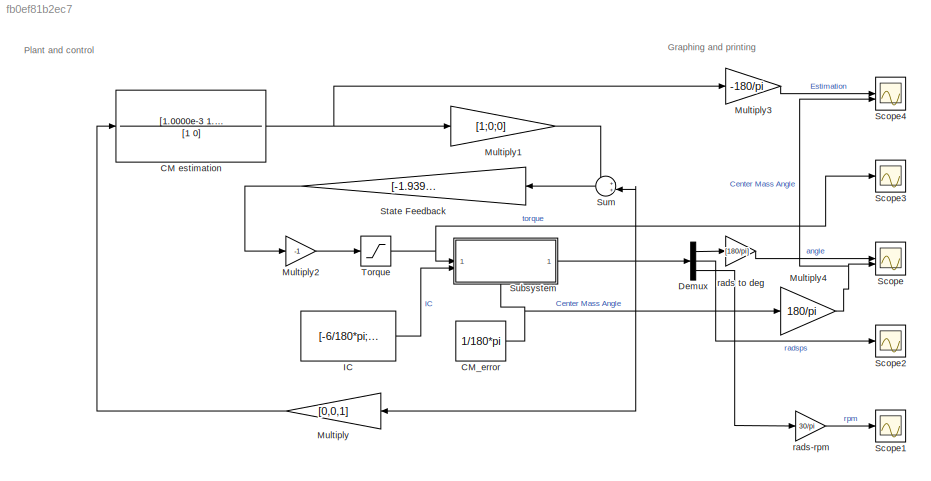
MODEL slx_fb0ef81b2ec7
KIND model
CONFIG AbsTol = auto
CONFIG EnableMultiTasking = off
CONFIG FixedStep = 1e-5
CONFIG MaxStep = auto
CONFIG MinStep = auto
CONFIG RelTol = 1e-3
CONFIG SampleTimeConstraint = Unconstrained
CONFIG SolverName = FixedStepAuto
CONFIG StartTime = 0.0
CONFIG StopTime = 10
WORKSPACE source: mxarray member
WORKSPACE B_f: Simulink.Parameter (value not decoded)
WORKSPACE B_w: Simulink.Parameter (value not decoded)
WORKSPACE J_f: Simulink.Parameter (value not decoded)
WORKSPACE J_w: Simulink.Parameter (value not decoded)
WORKSPACE g: Simulink.Parameter (value not decoded)
WORKSPACE l_f: Simulink.Parameter (value not decoded)
WORKSPACE l_w: Simulink.Parameter (value not decoded)
WORKSPACE m_f: Simulink.Parameter (value not decoded)
WORKSPACE m_w: Simulink.Parameter (value not decoded)
BLOCK [TransferFcn] CM estimation
  Denominator = [1 0]
  Numerator = [1.0000e-3 1.0000e-3]
BLOCK [Constant] CM_error
  Value = 1/180*pi
BLOCK [Demux] Demux
  Outputs = 3
BLOCK [Constant] IC
  Value = [-6/180*pi;0;0]
BLOCK [Gain] Multiply
  Gain = [0,0,1]
  Multiplication = Matrix(K*u)
  NameLocation = top
BLOCK [Gain] Multiply1
  Gain = [1;0;0]
  Multiplication = Matrix(K*u)
BLOCK [Gain] Multiply2
  Gain = -1
BLOCK [Gain] Multiply3
  Gain = -180/pi
BLOCK [Gain] Multiply4
  Gain = 180/pi
BLOCK [Scope] Scope
  Floating = off
  NumInputPorts = 2
  ScopeSpecificationString = Simulink.scopes.TimeScopeBlockCfg('CurrentConfiguration', extmgr.ConfigurationSet(extmgr.Configuration('Core','General UI',true),extmgr.Configuration('Core','Source UI',true),extmgr.Configuration('Sources','WiredSimulink',true),extmgr.Configuration('Visuals','Time Domain',true,'SerializedDisplays',{struct('MinYLimReal','-6.96667','MaxYLimReal','2.70002','YLabelReal','','MinYLimMag','0.00000','MaxY...<+1376ch>
BLOCK [Scope] Scope1
  Floating = off
  NumInputPorts = 1
  ScopeSpecificationString = Simulink.scopes.TimeScopeBlockCfg('CurrentConfiguration', extmgr.ConfigurationSet(extmgr.Configuration('Core','General UI',true),extmgr.Configuration('Core','Source UI',true),extmgr.Configuration('Sources','WiredSimulink',true,'DataLoggingVariableName','ScopeData1'),extmgr.Configuration('Visuals','Time Domain',true,'SerializedDisplays',{struct('MinYLimReal','-65.25392','MaxYLimReal','15.71621','YL...<+1724ch>
BLOCK [Scope] Scope2
  Floating = off
  NumInputPorts = 1
  ScopeSpecificationString = Simulink.scopes.TimeScopeBlockCfg('CurrentConfiguration', extmgr.ConfigurationSet(extmgr.Configuration('Core','General UI',true),extmgr.Configuration('Core','Source UI',true),extmgr.Configuration('Sources','WiredSimulink',true,'DataLoggingVariableName','ScopeData2'),extmgr.Configuration('Visuals','Time Domain',true,'SerializedDisplays',{struct('MinYLimReal','-0.48803','MaxYLimReal','0.14212','YLab...<+1384ch>
BLOCK [Scope] Scope3
  Floating = off
  NumInputPorts = 1
  ScopeSpecificationString = Simulink.scopes.TimeScopeBlockCfg('CurrentConfiguration', extmgr.ConfigurationSet(extmgr.Configuration('Core','General UI',true),extmgr.Configuration('Core','Source UI',true),extmgr.Configuration('Sources','WiredSimulink',true,'DataLoggingVariableName','ScopeData3'),extmgr.Configuration('Visuals','Time Domain',true,'SerializedDisplays',{struct('MinYLimReal','-0.1523','MaxYLimReal','0.03067','YLabe...<+1361ch>
BLOCK [Scope] Scope4
  Floating = off
  NumInputPorts = 2
  ScopeSpecificationString = Simulink.scopes.TimeScopeBlockCfg('CurrentConfiguration', extmgr.ConfigurationSet(extmgr.Configuration('Core','General UI',true),extmgr.Configuration('Core','Source UI',true),extmgr.Configuration('Sources','WiredSimulink',true,'DataLoggingVariableName','ScopeData1'),extmgr.Configuration('Visuals','Time Domain',true,'SerializedDisplays',{struct('MinYLimReal','-0.14876','MaxYLimReal','1.33886','YLab...<+1458ch>
BLOCK [Gain] State Feedback
  Gain = [-1.9398,-0.21019,-0.00225]
  Multiplication = Matrix(K*u)
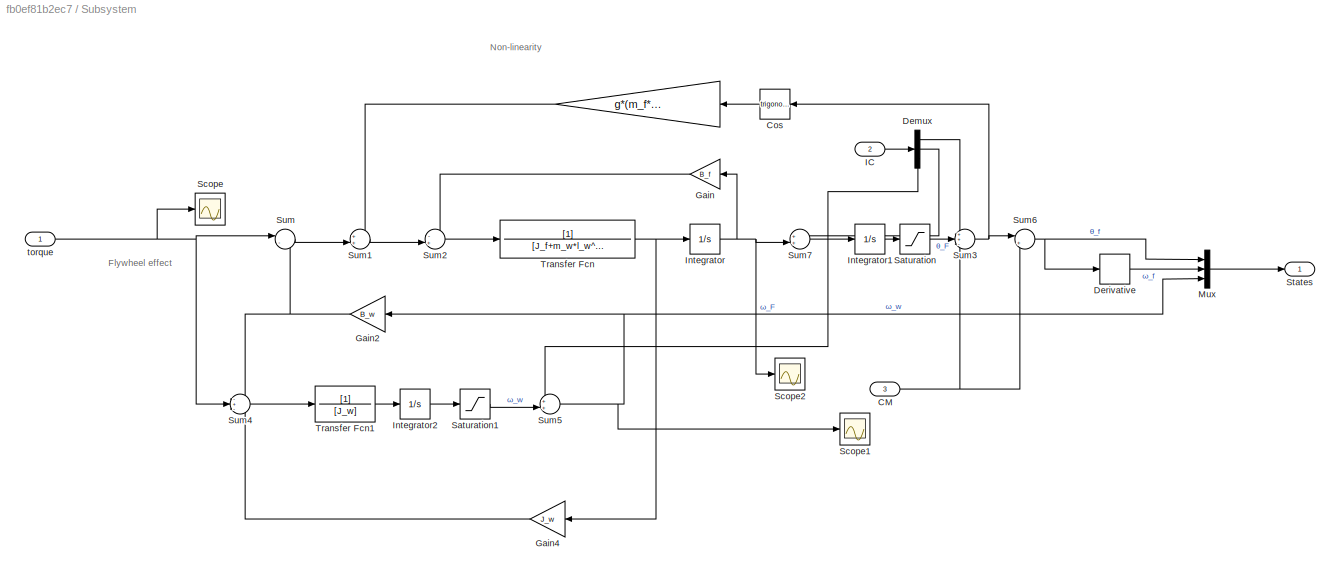
BLOCK [SubSystem] Subsystem
  PortSchema = {"entries":[{"content":{"sides":[{"content":{"connectorIds":["In1","In2"]},"type":"ConnectorPlacement.EquallySpacedRectSide","uuid":"e7061c55-2b62-4262-b0e7-7a5bab08f6b1"},{"content":{"connectorIds":["Out1"],"side":"RIGHT"},"type":"ConnectorPlacement.EquallySpacedRectSide","uuid":"5d6af3c2-eba8-48f3-a8f1-c49dd0c9c08f"},{"content":{"connectorIds":[],"side":"TOP"},"type":"ConnectorPlacement.EquallyS...<+395ch>
BLOCK [Gain] Subsystem/ 
  Gain = g*(m_f*l_f+m_w*l_w)
BLOCK [Inport] Subsystem/CM
  Port = 3
BLOCK [Trigonometry] Subsystem/Cos
  NameLocation = top
BLOCK [Demux] Subsystem/Demux
  Outputs = 3
BLOCK [Derivative] Subsystem/Derivative
BLOCK [Gain] Subsystem/Gain
  Gain = B_f
BLOCK [Gain] Subsystem/Gain2
  Gain = B_w
BLOCK [Gain] Subsystem/Gain4
  Gain = J_w
BLOCK [Inport] Subsystem/IC
  Port = 2
BLOCK [Integrator] Subsystem/Integrator
BLOCK [Integrator] Subsystem/Integrator1
BLOCK [Integrator] Subsystem/Integrator2
BLOCK [Mux] Subsystem/Mux
  DisplayOption = bar
  Inputs = 3
BLOCK [Saturate] Subsystem/Saturation
  LowerLimit = -45/180*pi
  UpperLimit = 45/180*pi
BLOCK [Saturate] Subsystem/Saturation1
  LowerLimit = -6000
  UpperLimit = 6000
BLOCK [Scope] Subsystem/Scope
  Floating = off
  NumInputPorts = 1
  ScopeSpecificationString = Simulink.scopes.TimeScopeBlockCfg('CurrentConfiguration', extmgr.ConfigurationSet(extmgr.Configuration('Core','General UI',true),extmgr.Configuration('Core','Source UI',true),extmgr.Configuration('Sources','WiredSimulink',true,'DataLoggingVariableName','ScopeData2'),extmgr.Configuration('Visuals','Time Domain',true,'SerializedDisplays',{struct('MinYLimReal','-0.0033','MaxYLimReal','0.00184','YLabe...<+1407ch>
BLOCK [Scope] Subsystem/Scope1
  Floating = off
  NumInputPorts = 1
  ScopeSpecificationString = Simulink.scopes.TimeScopeBlockCfg('CurrentConfiguration', extmgr.ConfigurationSet(extmgr.Configuration('Core','General UI',true),extmgr.Configuration('Core','Source UI',true),extmgr.Configuration('Sources','WiredSimulink',true,'DataLoggingVariableName','ScopeData3'),extmgr.Configuration('Visuals','Time Domain',true,'SerializedDisplays',{struct('MinYLimReal','-6.83337','MaxYLimReal','1.6458','YLabe...<+1360ch>
BLOCK [Scope] Subsystem/Scope2
  Floating = off
  NumInputPorts = 1
  ScopeSpecificationString = Simulink.scopes.TimeScopeBlockCfg('CurrentConfiguration', extmgr.ConfigurationSet(extmgr.Configuration('Core','General UI',true),extmgr.Configuration('Core','Source UI',true),extmgr.Configuration('Sources','WiredSimulink',true,'DataLoggingVariableName','ScopeData4'),extmgr.Configuration('Visuals','Time Domain',true,'SerializedDisplays',{struct('MinYLimReal','-0.04541','MaxYLimReal','0.37061','YLab...<+1362ch>
BLOCK [Outport] Subsystem/States
  PortDimensions = 3
BLOCK [Sum] Subsystem/Sum
  Inputs = |-+
BLOCK [Sum] Subsystem/Sum1
  Inputs = ++|
BLOCK [Sum] Subsystem/Sum2
  Inputs = -+|
BLOCK [Sum] Subsystem/Sum3
  Inputs = ++-
BLOCK [Sum] Subsystem/Sum4
  Inputs = -+-
BLOCK [Sum] Subsystem/Sum5
  Inputs = ++|
BLOCK [Sum] Subsystem/Sum6
  Inputs = |++
BLOCK [Sum] Subsystem/Sum7
  Inputs = ++|
BLOCK [TransferFcn] Subsystem/Transfer Fcn
  Denominator = [J_f+m_w*l_w^2]
BLOCK [TransferFcn] Subsystem/Transfer Fcn1
  Denominator = [J_w]
BLOCK [Inport] Subsystem/torque
BLOCK [Sum] Sum
  Inputs = ++|
  NameLocation = top
BLOCK [Saturate] Torque
  LowerLimit = -4*33.5/1000
  UpperLimit = 4*33.5/1000
BLOCK [Gain] rads to deg
  Gain = [180/pi]
BLOCK [Gain] rads-rpm
  Gain = 30/pi
ANNOTATION (root): Graphing and printing
ANNOTATION (root): Plant and control
ANNOTATION Subsystem: Flywheel effect
ANNOTATION Subsystem: Non-linearity
NET CM estimation:1 -> Multiply1:1, Multiply3:1
NET CM_error:1 -> Multiply4:1, Subsystem:3
LINE Demux:1 -> rads to deg:1
LINE Demux:2 -> Scope2:1
LINE Demux:3 -> rads-rpm:1
LINE IC:1 -> Subsystem:2
LINE Multiply1:1 -> Sum:1
LINE Multiply2:1 -> Torque:1
LINE Multiply3:1 -> Scope4:1
NET Multiply4:1 -> Scope4:2, Scope:2
LINE Multiply:1 -> CM estimation:1
LINE State Feedback:1 -> Multiply2:1
LINE Subsystem/ :1 -> Subsystem/Sum1:1
NET Subsystem/CM:1 -> Subsystem/Sum3:3, Subsystem/Sum6:2
LINE Subsystem/Cos:1 -> Subsystem/ :1
LINE Subsystem/Demux:1 -> Subsystem/Sum3:1
LINE Subsystem/Demux:2 -> Subsystem/Sum7:1
LINE Subsystem/Demux:3 -> Subsystem/Sum5:1
LINE Subsystem/Derivative:1 -> Subsystem/Mux:2
NET Subsystem/Gain2:1 -> Subsystem/Sum4:1, Subsystem/Sum:2
LINE Subsystem/Gain4:1 -> Subsystem/Sum4:3
LINE Subsystem/Gain:1 -> Subsystem/Sum2:1
LINE Subsystem/IC:1 -> Subsystem/Demux:1
LINE Subsystem/Integrator1:1 -> Subsystem/Saturation:1
LINE Subsystem/Integrator2:1 -> Subsystem/Saturation1:1
NET Subsystem/Integrator:1 -> Subsystem/Gain:1, Subsystem/Scope2:1, Subsystem/Sum7:2
LINE Subsystem/Mux:1 -> Subsystem/States:1
LINE Subsystem/Saturation1:1 -> Subsystem/Sum5:2
LINE Subsystem/Saturation:1 -> Subsystem/Sum3:2
LINE Subsystem/Sum1:1 -> Subsystem/Sum2:2
LINE Subsystem/Sum2:1 -> Subsystem/Transfer Fcn:1
NET Subsystem/Sum3:1 -> Subsystem/Cos:1, Subsystem/Sum6:1
LINE Subsystem/Sum4:1 -> Subsystem/Transfer Fcn1:1
NET Subsystem/Sum5:1 -> Subsystem/Gain2:1, Subsystem/Mux:3, Subsystem/Scope1:1
NET Subsystem/Sum6:1 -> Subsystem/Derivative:1, Subsystem/Mux:1
LINE Subsystem/Sum7:1 -> Subsystem/Integrator1:1
LINE Subsystem/Sum:1 -> Subsystem/Sum1:2
LINE Subsystem/Transfer Fcn1:1 -> Subsystem/Integrator2:1
NET Subsystem/Transfer Fcn:1 -> Subsystem/Gain4:1, Subsystem/Integrator:1
NET Subsystem/torque:1 -> Subsystem/Scope:1, Subsystem/Sum4:2, Subsystem/Sum:1
NET Subsystem:1 -> Demux:1, Multiply:1, Sum:2
LINE Sum:1 -> State Feedback:1
NET Torque:1 -> Scope3:1, Subsystem:1
LINE rads to deg:1 -> Scope:1
LINE rads-rpm:1 -> Scope1:1
note: NET lines group one-source signal fan-out (src -> all destinations, sorted); 1:1 wires keep LINE
